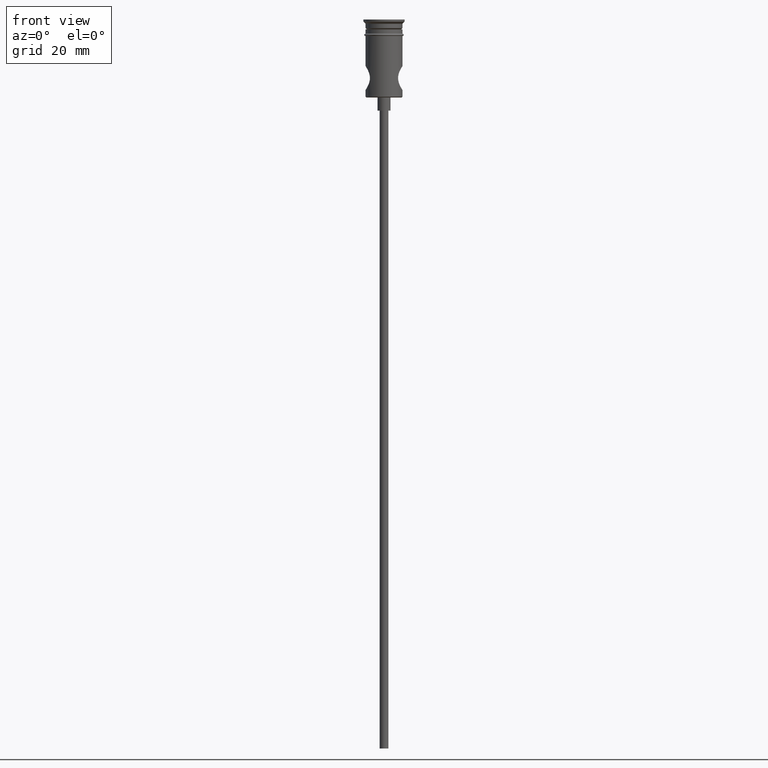
[diagram: clean part render]
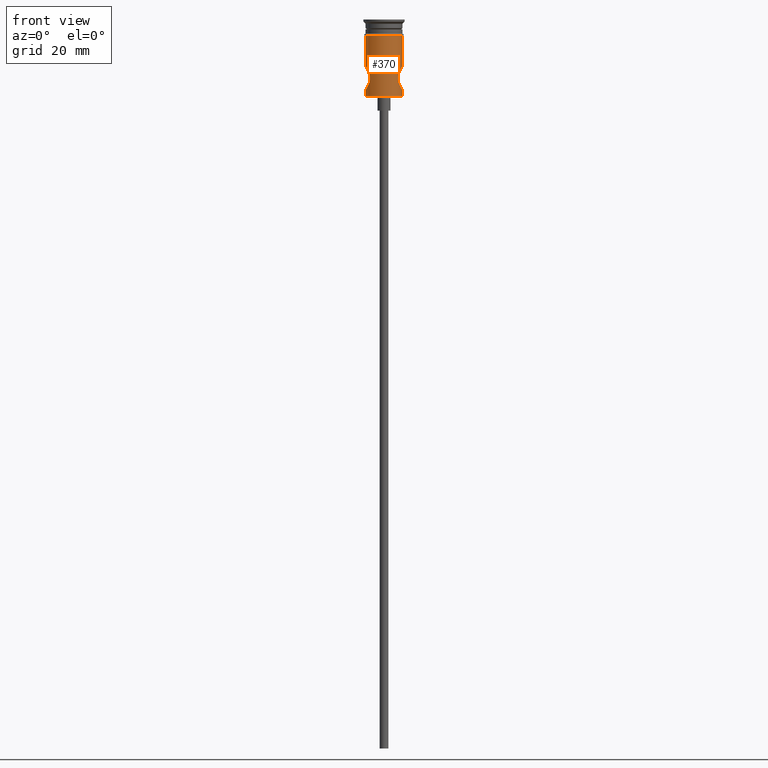
[diagram: same view with one face highlighted and labeled with its STEP entity id]
A machine part, front view. The second image highlights one B-rep face of the part: STEP entity #370.
In plain terms, the highlighted cylindrical surface (edge-blend (fillet) strip) has radius 4.25 mm, axis along (-0, -0, 1).
Its self-contained STEP definition (entity closure, byte-faithful):
#2 = EDGE_CURVE ( 'NONE', #731, #708, #546, .T. ) ;
#8 = CARTESIAN_POINT ( 'NONE',  ( 4.249999999999997335, 0.000000000000000000, -16.25000000000000000 ) ) ;
#20 = DIRECTION ( 'NONE',  ( -0.000000000000000000, -0.000000000000000000, 1.000000000000000000 ) ) ;
#53 = CARTESIAN_POINT ( 'NONE',  ( 4.249999999999997335, 0.000000000000000000, -17.79999999999995808 ) ) ;
#57 = CARTESIAN_POINT ( 'NONE',  ( 0.000000000000000000, 0.000000000000000000, -17.79999999999995808 ) ) ;
#59 = CARTESIAN_POINT ( 'NONE',  ( -3.647647208285519582, -2.184164315469646400, -11.81995465034544956 ) ) ;
#75 = DIRECTION ( 'NONE',  ( -1.000000000000000000, 0.000000000000000000, 0.000000000000000000 ) ) ;
#77 = CARTESIAN_POINT ( 'NONE',  ( -3.840622235673528007, -1.825278692726477692, -11.43557704835951760 ) ) ;
#98 = CARTESIAN_POINT ( 'NONE',  ( -3.240228426298894515, -2.750167230217083425, -13.31605301161300225 ) ) ;
#111 = CARTESIAN_POINT ( 'NONE',  ( -4.155334731455366359, -0.9083529674580627100, -16.10190042141340427 ) ) ;
#120 = CARTESIAN_POINT ( 'NONE',  ( -4.249999999999997335, 0.000000000000000000, -16.25000000000000000 ) ) ;
#122 = CARTESIAN_POINT ( 'NONE',  ( -3.523702571072897083, -2.378944658106735499, -14.89054770374115755 ) ) ;
#141 = CARTESIAN_POINT ( 'NONE',  ( 3.317391764057896264, -2.657012432191005136, -12.76717152618819284 ) ) ;
#146 = ORIENTED_EDGE ( 'NONE', *, *, #890, .T. ) ;
#149 = CARTESIAN_POINT ( 'NONE',  ( 4.155620439744574846, -0.9072158869068334131, -10.89763742324026552 ) ) ;
#156 = CARTESIAN_POINT ( 'NONE',  ( 4.249999999999997335, -0.3748030667232212787, -16.25000000000000000 ) ) ;
#179 = CARTESIAN_POINT ( 'NONE',  ( 4.198035567893796838, -0.7457751924957479739, -16.17129962006159261 ) ) ;
#185 = FACE_OUTER_BOUND ( 'NONE', #1116, .T. ) ;
#186 = CARTESIAN_POINT ( 'NONE',  ( -4.068014576300313934, -1.242421292593817173, -11.03994418658763088 ) ) ;
#195 = LINE ( 'NONE', #1150, #322 ) ;
#212 = CIRCLE ( 'NONE', #1007, 4.249999999999999112 ) ;
#226 = EDGE_CURVE ( 'NONE', #1182, #640, #1187, .T. ) ;
#237 = CARTESIAN_POINT ( 'NONE',  ( -3.647785336404484102, -2.183922992056437806, -15.18032168571427043 ) ) ;
#240 = LINE ( 'NONE', #391, #1038 ) ;
#246 = ORIENTED_EDGE ( 'NONE', *, *, #2, .F. ) ;
#272 = CARTESIAN_POINT ( 'NONE',  ( 4.190207837038134819, -0.7335316360740457009, -10.84318649086376318 ) ) ;
#273 = CARTESIAN_POINT ( 'NONE',  ( 4.249999999999999112, 0.000000000000000000, -3.799999999999998934 ) ) ;
#296 = VERTEX_POINT ( 'NONE', #1065 ) ;
#298 = DIRECTION ( 'NONE',  ( -0.000000000000000000, -0.000000000000000000, 1.000000000000000000 ) ) ;
#319 = CARTESIAN_POINT ( 'NONE',  ( -3.256261808067939967, -2.731577754047776807, -13.13260952066415577 ) ) ;
#322 = VECTOR ( 'NONE', #1390, 1000.000000000000000 ) ;
#328 = CARTESIAN_POINT ( 'NONE',  ( -3.463282699767082029, -2.464882569099720477, -12.26760260682620718 ) ) ;
#332 = CARTESIAN_POINT ( 'NONE',  ( -4.249999999999997335, 5.204748896376248727E-16, 0.000000000000000000 ) ) ;
#338 = CARTESIAN_POINT ( 'NONE',  ( 3.360805570480984716, -2.602867017081773149, -12.59486312964815191 ) ) ;
#347 = CARTESIAN_POINT ( 'NONE',  ( -3.257287351234153583, -2.730357719509510339, -13.87561695753797686 ) ) ;
#348 = CARTESIAN_POINT ( 'NONE',  ( 3.256642946224108215, -2.731120776416927409, -13.87021416548673969 ) ) ;
#352 = VERTEX_POINT ( 'NONE', #778 ) ;
#361 = EDGE_CURVE ( 'NONE', #352, #296, #240, .T. ) ;
#362 = CARTESIAN_POINT ( 'NONE',  ( 3.522745161808382264, -2.380353866525853679, -14.88812900666103900 ) ) ;
#370 = ADVANCED_FACE ( 'NONE', ( #185 ), #1259, .T. ) ;
#373 = CARTESIAN_POINT ( 'NONE',  ( 3.316708597254388824, -2.657854032008955869, -14.22930869200700954 ) ) ;
#391 = CARTESIAN_POINT ( 'NONE',  ( -4.249999999999997335, 5.204748896376248727E-16, 0.000000000000000000 ) ) ;
#394 = ORIENTED_EDGE ( 'NONE', *, *, #226, .F. ) ;
#401 = CARTESIAN_POINT ( 'NONE',  ( -4.015772538107726497, -1.400147493956907407, -11.12661391491455909 ) ) ;
#409 = CARTESIAN_POINT ( 'NONE',  ( 0.000000000000000000, 0.000000000000000000, -3.799999999999998934 ) ) ;
#427 = CARTESIAN_POINT ( 'NONE',  ( -3.317732867736307600, -2.656581032706775591, -14.23383826006679698 ) ) ;
#429 = CARTESIAN_POINT ( 'NONE',  ( 4.249999999999997335, -5.964156999285768506E-20, -10.75000000000000000 ) ) ;
#449 = CARTESIAN_POINT ( 'NONE',  ( -3.362015581049109247, -2.601310859038222123, -14.40956275273693521 ) ) ;
#466 = CARTESIAN_POINT ( 'NONE',  ( 3.240215677518331283, -2.750182252353511991, -13.68181968656044667 ) ) ;
#474 = CARTESIAN_POINT ( 'NONE',  ( 4.237714452335332282, -0.3710614493120016899, -10.76887567396049938 ) ) ;
#484 = VECTOR ( 'NONE', #524, 1000.000000000000000 ) ;
#503 = DIRECTION ( 'NONE',  ( -0.000000000000000000, -0.000000000000000000, 1.000000000000000000 ) ) ;
#517 = CARTESIAN_POINT ( 'NONE',  ( -3.902301534695393759, -1.690823709015212728, -11.32411174488600203 ) ) ;
#524 = DIRECTION ( 'NONE',  ( -0.000000000000000000, -0.000000000000000000, 1.000000000000000000 ) ) ;
#541 = CARTESIAN_POINT ( 'NONE',  ( -3.316522469792354322, -2.658088918086265906, -12.77126404352310196 ) ) ;
#546 = B_SPLINE_CURVE_WITH_KNOTS ( 'NONE', 3,
 ( #684, #1124, #474, #272, #149, #1330, #582, #1118, #884, #889, #1313, #338, #141, #1010, #1102, #466, #348, #373, #1337, #908, #362, #804, #1017, #916, #1045, #602, #724, #179, #156, #1384 ),
 .UNSPECIFIED., .F., .F.,
 ( 4, 2, 2, 2, 2, 2, 2, 2, 2, 2, 2, 2, 2, 2, 4 ),
 ( 0.008865950887352312335, 0.009419240771521925071, 0.009972530655691537807, 0.01107911042403076501, 0.01163240030820037949, 0.01218569019236999396, 0.01273898007653961016, 0.01329226996070922463, 0.01384555984487884084, 0.01439884972904845531, 0.01495213961321806978, 0.01550542949738768425, 0.01605871938155729872, 0.01661200926572691319, 0.01771858903406614560 ),
 .UNSPECIFIED. ) ;
#582 = CARTESIAN_POINT ( 'NONE',  ( 3.903270111302728829, -1.704091631636142301, -11.31349511279738351 ) ) ;
#602 = CARTESIAN_POINT ( 'NONE',  ( 4.015423691679791851, -1.401263422304992012, -15.87281956388753379 ) ) ;
#614 = DIRECTION ( 'NONE',  ( -0.000000000000000000, -0.000000000000000000, 1.000000000000000000 ) ) ;
#640 = VERTEX_POINT ( 'NONE', #1378 ) ;
#642 = EDGE_CURVE ( 'NONE', #352, #997, #1101, .T. ) ;
#656 = CARTESIAN_POINT ( 'NONE',  ( -4.025284254402694550, -1.406141545853144326, -15.89065464230831459 ) ) ;
#677 = AXIS2_PLACEMENT_3D ( 'NONE', #749, #503, #1069 ) ;
#684 = CARTESIAN_POINT ( 'NONE',  ( 4.249999999999997335, -5.964156999285768506E-20, -10.75000000000000000 ) ) ;
#708 = VERTEX_POINT ( 'NONE', #8 ) ;
#724 = CARTESIAN_POINT ( 'NONE',  ( 4.067922794682170107, -1.242497466100458858, -15.95989443293908927 ) ) ;
#731 = VERTEX_POINT ( 'NONE', #429 ) ;
#732 = DIRECTION ( 'NONE',  ( 1.000000000000000000, 0.000000000000000000, 0.000000000000000000 ) ) ;
#749 = CARTESIAN_POINT ( 'NONE',  ( 0.000000000000000000, 0.000000000000000000, 0.000000000000000000 ) ) ;
#777 = CARTESIAN_POINT ( 'NONE',  ( -3.903649545419221045, -1.703087824547434570, -15.68708491731533883 ) ) ;
#778 = CARTESIAN_POINT ( 'NONE',  ( -4.249999999999997335, 5.204748896376248727E-16, -17.79999999999995808 ) ) ;
#789 = LINE ( 'NONE', #1125, #1418 ) ;
#804 = CARTESIAN_POINT ( 'NONE',  ( 3.646730217503171279, -2.185675347730814622, -15.17803752739326839 ) ) ;
#832 = DIRECTION ( 'NONE',  ( -0.000000000000000000, -0.000000000000000000, 1.000000000000000000 ) ) ;
#842 = AXIS2_PLACEMENT_3D ( 'NONE', #57, #832, #75 ) ;
#870 = CARTESIAN_POINT ( 'NONE',  ( -4.249999999999999112, -0.1876833508229764913, -16.25000000000000355 ) ) ;
#873 = CARTESIAN_POINT ( 'NONE',  ( -3.360185467375182533, -2.603675625495278645, -12.59704781336165524 ) ) ;
#878 = CARTESIAN_POINT ( 'NONE',  ( -4.190603293377628269, -0.7309107395663115847, -16.15743406878304711 ) ) ;
#884 = CARTESIAN_POINT ( 'NONE',  ( 3.647847344689137294, -2.183825531822105592, -11.81953350730051788 ) ) ;
#889 = CARTESIAN_POINT ( 'NONE',  ( 3.523640592887602896, -2.379042071033715455, -12.10959703295216450 ) ) ;
#890 = EDGE_CURVE ( 'NONE', #731, #1281, #789, .T. ) ;
#908 = CARTESIAN_POINT ( 'NONE',  ( 3.463853683506851411, -2.464090659896389646, -14.73404173964449981 ) ) ;
#916 = CARTESIAN_POINT ( 'NONE',  ( 3.839379489766063802, -1.827783371516099153, -15.56206074870781109 ) ) ;
#917 = ORIENTED_EDGE ( 'NONE', *, *, #1289, .F. ) ;
#952 = CARTESIAN_POINT ( 'NONE',  ( -4.155442691875919969, -0.9081020294093200551, -10.89791699256592494 ) ) ;
#976 = EDGE_CURVE ( 'NONE', #296, #1182, #1291, .T. ) ;
#983 = CARTESIAN_POINT ( 'NONE',  ( -4.237633467721872549, -0.3712803050584276843, -16.23099565620633911 ) ) ;
#997 = VERTEX_POINT ( 'NONE', #53 ) ;
#1007 = AXIS2_PLACEMENT_3D ( 'NONE', #409, #298, #732 ) ;
#1010 = CARTESIAN_POINT ( 'NONE',  ( 3.256546954943039474, -2.731246073005494157, -13.12980069484267176 ) ) ;
#1017 = CARTESIAN_POINT ( 'NONE',  ( 3.712426123095563746, -2.073528200962002188, -15.31476372687120246 ) ) ;
#1020 = ORIENTED_EDGE ( 'NONE', *, *, #642, .T. ) ;
#1038 = VECTOR ( 'NONE', #614, 1000.000000000000000 ) ;
#1045 = CARTESIAN_POINT ( 'NONE',  ( 3.901047162632663934, -1.693811570780205056, -15.67366377900273555 ) ) ;
#1065 = CARTESIAN_POINT ( 'NONE',  ( -4.249999999999997335, 0.000000000000000000, -16.25000000000000000 ) ) ;
#1069 = DIRECTION ( 'NONE',  ( 1.000000000000000000, 0.000000000000000000, 0.000000000000000000 ) ) ;
#1101 = CIRCLE ( 'NONE', #842, 4.249999999999997335 ) ;
#1102 = CARTESIAN_POINT ( 'NONE',  ( 3.240527330953798746, -2.749815025658500112, -13.31270839782863291 ) ) ;
#1116 = EDGE_LOOP ( 'NONE', ( #1415, #1020, #1343, #246, #146, #917, #394, #1270 ) ) ;
#1118 = CARTESIAN_POINT ( 'NONE',  ( 3.712306572358252232, -2.073768640790504936, -11.68546380521985384 ) ) ;
#1124 = CARTESIAN_POINT ( 'NONE',  ( 4.249999999999997335, -0.1847159666058112992, -10.75000000000000000 ) ) ;
#1125 = CARTESIAN_POINT ( 'NONE',  ( 4.249999999999997335, 0.000000000000000000, 0.000000000000000000 ) ) ;
#1150 = CARTESIAN_POINT ( 'NONE',  ( 4.249999999999997335, 0.000000000000000000, 0.000000000000000000 ) ) ;
#1182 = VERTEX_POINT ( 'NONE', #1236 ) ;
#1187 = LINE ( 'NONE', #332, #484 ) ;
#1196 = CARTESIAN_POINT ( 'NONE',  ( -3.523327046384830741, -2.379510545741978067, -12.11037569948939741 ) ) ;
#1209 = CARTESIAN_POINT ( 'NONE',  ( -3.713419268557901276, -2.071747888570477425, -15.31678227358735889 ) ) ;
#1236 = CARTESIAN_POINT ( 'NONE',  ( -4.249999999999997335, 5.205345311974756415E-16, -10.75000000000000000 ) ) ;
#1259 = CYLINDRICAL_SURFACE ( 'NONE', #677, 4.249999999999997335 ) ;
#1270 = ORIENTED_EDGE ( 'NONE', *, *, #976, .F. ) ;
#1278 = CARTESIAN_POINT ( 'NONE',  ( -4.249999999999997335, 5.205345311974756415E-16, -10.75000000000000000 ) ) ;
#1281 = VERTEX_POINT ( 'NONE', #273 ) ;
#1283 = CARTESIAN_POINT ( 'NONE',  ( -4.249999999999996447, -0.1849937454683881766, -10.74999999999999822 ) ) ;
#1289 = EDGE_CURVE ( 'NONE', #640, #1281, #212, .T. ) ;
#1291 = B_SPLINE_CURVE_WITH_KNOTS ( 'NONE', 3,
 ( #120, #870, #983, #878, #111, #656, #777, #1209, #237, #122, #1405, #449, #427, #347, #1294, #98, #319, #541, #873, #328, #1196, #59, #1395, #77, #517, #401, #186, #952, #1388, #1383, #1283, #1278 ),
 .UNSPECIFIED., .F., .F.,
 ( 4, 2, 2, 2, 2, 2, 2, 2, 2, 2, 2, 2, 2, 2, 2, 4 ),
 ( 0.000000000000000000, 0.0005541219304595177862, 0.001108243860919035572, 0.002216487721838075482, 0.002770609652297595545, 0.003324731582757115608, 0.003878853513216635237, 0.004432975443676155300, 0.004987097374135674929, 0.005541219304595194559, 0.006095341235054715055, 0.006649463165514233817, 0.007203585095973753447, 0.007757707026433273076, 0.008311828956892794440, 0.008865950887352312335 ),
 .UNSPECIFIED. ) ;
#1294 = CARTESIAN_POINT ( 'NONE',  ( -3.240514175250544415, -2.749830527279015335, -13.68891363090301461 ) ) ;
#1308 = EDGE_CURVE ( 'NONE', #997, #708, #195, .T. ) ;
#1313 = CARTESIAN_POINT ( 'NONE',  ( 3.463585092110388786, -2.464449046115352537, -12.26684130713697840 ) ) ;
#1330 = CARTESIAN_POINT ( 'NONE',  ( 4.024918142879832850, -1.407629767315599523, -11.10993618836867469 ) ) ;
#1337 = CARTESIAN_POINT ( 'NONE',  ( 3.360420657424080026, -2.603382055344573232, -14.40388255281498076 ) ) ;
#1343 = ORIENTED_EDGE ( 'NONE', *, *, #1308, .T. ) ;
#1378 = CARTESIAN_POINT ( 'NONE',  ( -4.249999999999999112, 5.204748896376249713E-16, -3.799999999999998934 ) ) ;
#1383 = CARTESIAN_POINT ( 'NONE',  ( -4.237534661787413448, -0.3728801659703385174, -10.76915465875327271 ) ) ;
#1384 = CARTESIAN_POINT ( 'NONE',  ( 4.249999999999997335, 0.000000000000000000, -16.25000000000000000 ) ) ;
#1388 = CARTESIAN_POINT ( 'NONE',  ( -4.190033994520313776, -0.7344077564868169983, -10.84346068291941201 ) ) ;
#1390 = DIRECTION ( 'NONE',  ( -0.000000000000000000, -0.000000000000000000, 1.000000000000000000 ) ) ;
#1395 = CARTESIAN_POINT ( 'NONE',  ( -3.712446595946066186, -2.073586683869199199, -11.68513838162200358 ) ) ;
#1405 = CARTESIAN_POINT ( 'NONE',  ( -3.464973689711408511, -2.462503661352578810, -14.73701184486718319 ) ) ;
#1415 = ORIENTED_EDGE ( 'NONE', *, *, #361, .F. ) ;
#1418 = VECTOR ( 'NONE', #20, 1000.000000000000000 ) ;